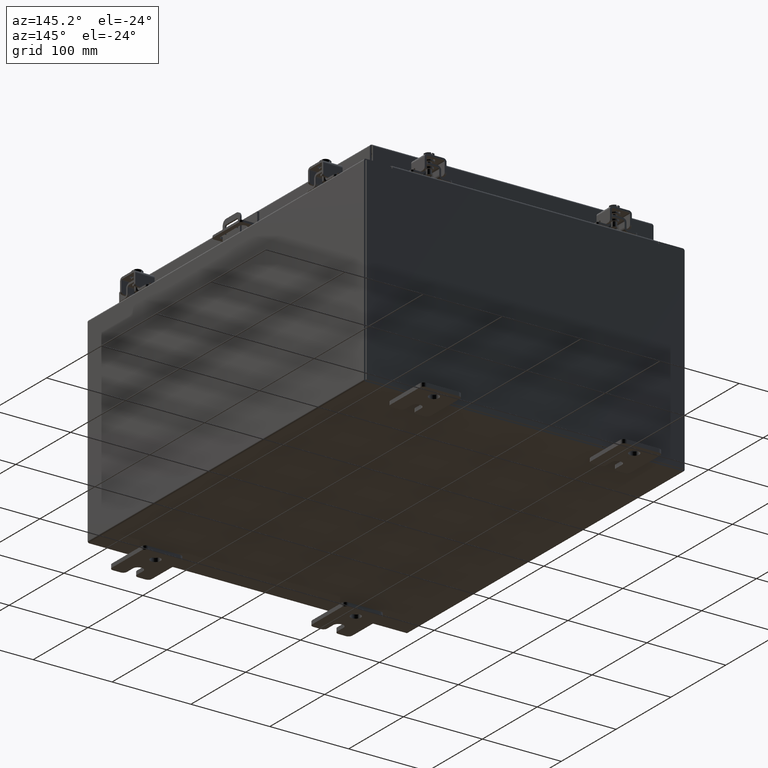
[diagram: clean part render]
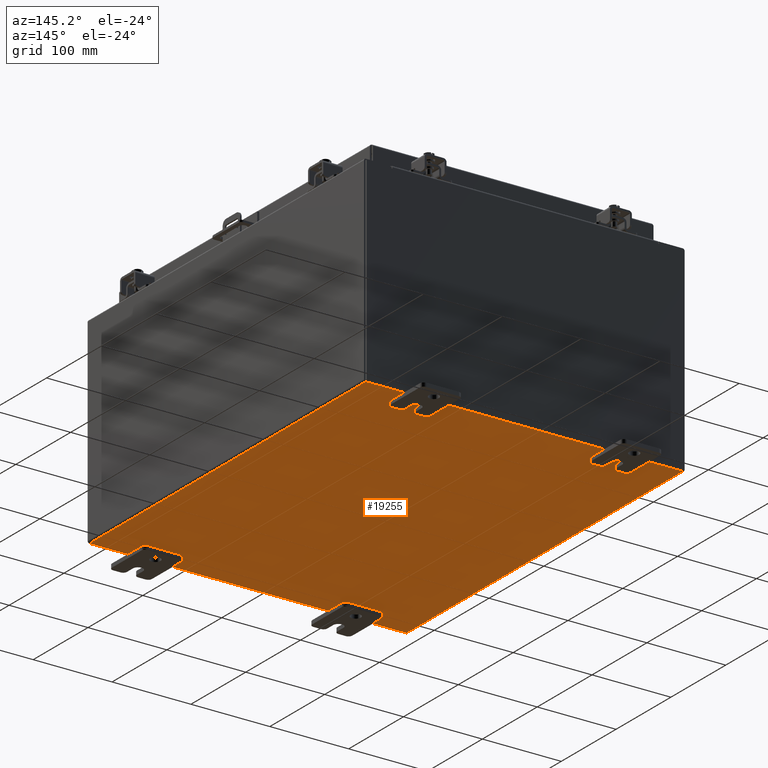
[diagram: same view with one face highlighted and labeled with its STEP entity id]
A machine part, auxiliary view. The second image highlights one B-rep face of the part: STEP entity #19255.
In plain terms, the highlighted planar face has unit normal (0, 0, -1).
Its self-contained STEP definition (entity closure, byte-faithful):
#316 = VECTOR ( 'NONE', #2039, 39.37007874015748100 ) ;
#2039 = DIRECTION ( 'NONE',  ( 1.000000000000000000, 0.0000000000000000000, 0.0000000000000000000 ) ) ;
#2952 = ORIENTED_EDGE ( 'NONE', *, *, #21840, .T. ) ;
#2997 = CARTESIAN_POINT ( 'NONE',  ( 7.912300000000001900, -9.925300000000001800, -0.07470000000000000300 ) ) ;
#4740 = VECTOR ( 'NONE', #5970, 39.37007874015748100 ) ;
#5157 = VERTEX_POINT ( 'NONE', #20622 ) ;
#5546 = PLANE ( 'NONE',  #24621 ) ;
#5970 = DIRECTION ( 'NONE',  ( -0.0000000000000000000, -1.000000000000000000, -0.0000000000000000000 ) ) ;
#6053 = CARTESIAN_POINT ( 'NONE',  ( -7.912299999999997400, 9.925299999999998200, -0.07470000000000000300 ) ) ;
#6098 = CARTESIAN_POINT ( 'NONE',  ( -7.999999999999997300, 9.925299999999998200, -0.07470000000000000300 ) ) ;
#6885 = ORIENTED_EDGE ( 'NONE', *, *, #26927, .T. ) ;
#7327 = LINE ( 'NONE', #28298, #24762 ) ;
#7689 = EDGE_LOOP ( 'NONE', ( #29278, #6885, #19085, #2952 ) ) ;
#11159 = FACE_OUTER_BOUND ( 'NONE', #7689, .T. ) ;
#11890 = VERTEX_POINT ( 'NONE', #15935 ) ;
#12702 = LINE ( 'NONE', #6098, #24774 ) ;
#13923 = EDGE_CURVE ( 'NONE', #11890, #26512, #12702, .T. ) ;
#15935 = CARTESIAN_POINT ( 'NONE',  ( 7.912300000000001900, 9.925299999999992900, -0.07469999999999994700 ) ) ;
#17330 = CARTESIAN_POINT ( 'NONE',  ( 7.912300000000001900, 9.925299999999998200, -0.07469999999999994700 ) ) ;
#17984 = CARTESIAN_POINT ( 'NONE',  ( -7.999999999999997300, -9.925300000000001800, -0.07470000000000000300 ) ) ;
#18323 = VERTEX_POINT ( 'NONE', #2997 ) ;
#18443 = CARTESIAN_POINT ( 'NONE',  ( 0.0000000000000000000, 0.0000000000000000000, -0.07470000000000000300 ) ) ;
#18476 = LINE ( 'NONE', #17984, #316 ) ;
#19085 = ORIENTED_EDGE ( 'NONE', *, *, #13923, .F. ) ;
#19255 = ADVANCED_FACE ( 'NONE', ( #11159 ), #5546, .T. ) ;
#20622 = CARTESIAN_POINT ( 'NONE',  ( -7.912299999999997400, -9.925300000000000000, -0.07469999999999994700 ) ) ;
#21563 = DIRECTION ( 'NONE',  ( -0.0000000000000000000, 1.000000000000000000, -0.0000000000000000000 ) ) ;
#21840 = EDGE_CURVE ( 'NONE', #11890, #18323, #22927, .T. ) ;
#22005 = DIRECTION ( 'NONE',  ( -1.000000000000000000, -0.0000000000000000000, -0.0000000000000000000 ) ) ;
#22927 = LINE ( 'NONE', #17330, #4740 ) ;
#23007 = DIRECTION ( 'NONE',  ( -1.000000000000000000, 0.0000000000000000000, -0.0000000000000000000 ) ) ;
#24399 = EDGE_CURVE ( 'NONE', #5157, #18323, #18476, .T. ) ;
#24621 = AXIS2_PLACEMENT_3D ( 'NONE', #18443, #28457, #23007 ) ;
#24762 = VECTOR ( 'NONE', #21563, 39.37007874015748100 ) ;
#24774 = VECTOR ( 'NONE', #22005, 39.37007874015748100 ) ;
#26512 = VERTEX_POINT ( 'NONE', #6053 ) ;
#26927 = EDGE_CURVE ( 'NONE', #5157, #26512, #7327, .T. ) ;
#28298 = CARTESIAN_POINT ( 'NONE',  ( -7.912299999999997400, -9.925300000000001800, -0.07469999999999994700 ) ) ;
#28457 = DIRECTION ( 'NONE',  ( 0.0000000000000000000, 0.0000000000000000000, -1.000000000000000000 ) ) ;
#29278 = ORIENTED_EDGE ( 'NONE', *, *, #24399, .F. ) ;